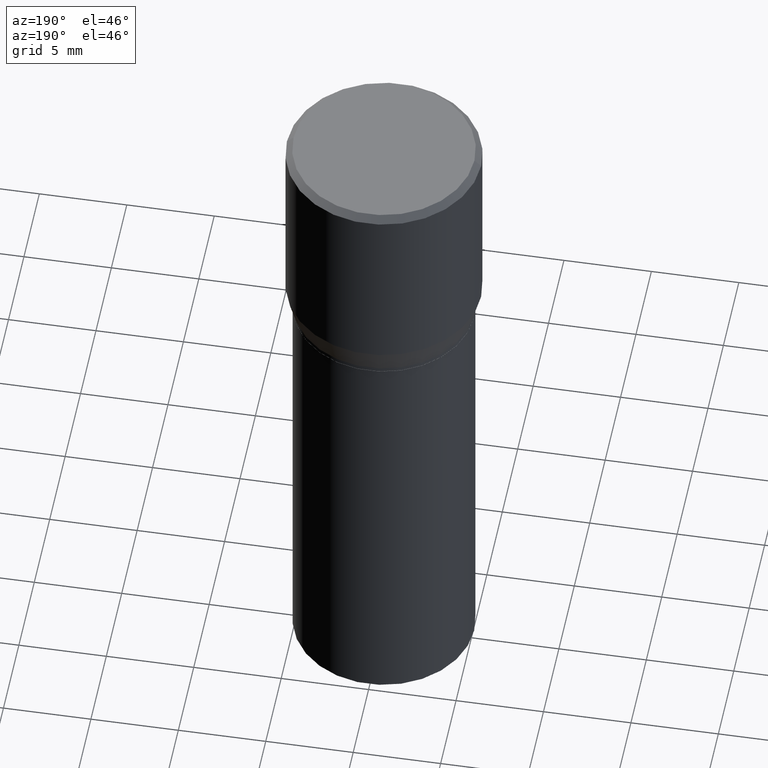
[diagram: clean part render]
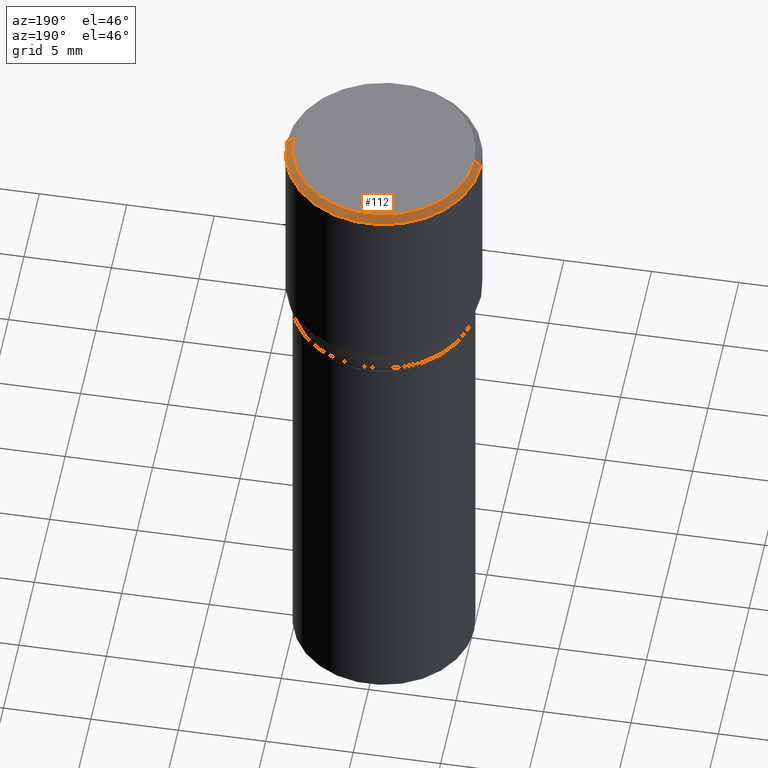
[diagram: same view with one face highlighted and labeled with its STEP entity id]
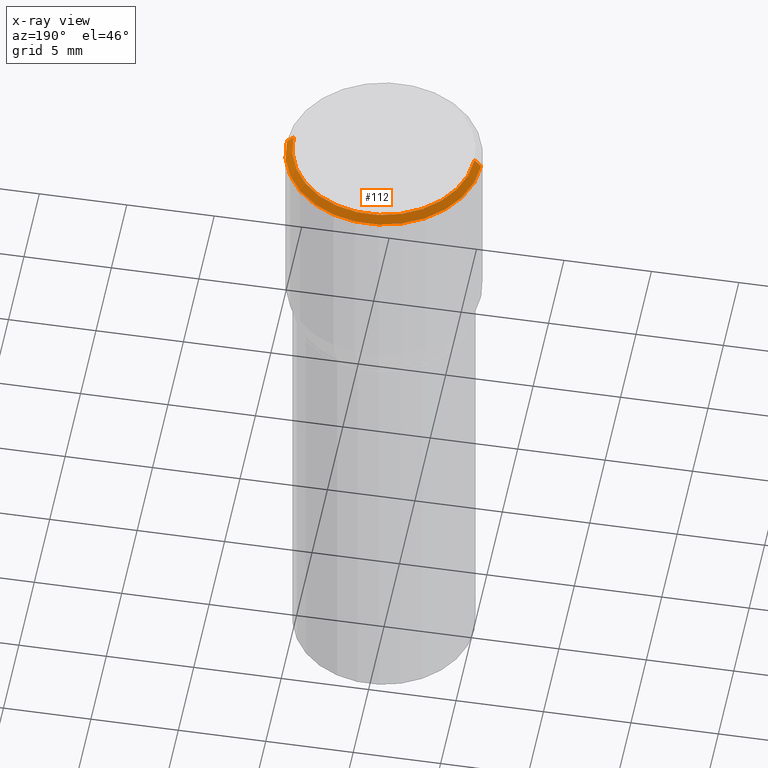
[diagram: x-ray of the same camera — body ghosted, the highlighted face saturated]
A machine part, auxiliary view. The second image highlights one B-rep face of the part: STEP entity #112.
The next image is the same camera in x-ray: the body ghosted, the highlighted face saturated — about 0% of this face is hidden behind the body in this view.
In plain terms, the highlighted conical surface has half-angle 45 deg.
Its self-contained STEP definition (entity closure, byte-faithful):
#2 = AXIS2_PLACEMENT_3D ( 'NONE', #225, #269, #127 ) ;
#9 = EDGE_CURVE ( 'NONE', #20, #426, #421, .T. ) ;
#20 = VERTEX_POINT ( 'NONE', #69 ) ;
#27 = ORIENTED_EDGE ( 'NONE', *, *, #403, .F. ) ;
#44 = CARTESIAN_POINT ( 'NONE',  ( -2.592568563193567003E-45, 3.701500806376036554E-31, 1.060151966214568974E-16 ) ) ;
#45 = EDGE_CURVE ( 'NONE', #431, #20, #103, .T. ) ;
#57 = CONICAL_SURFACE ( 'NONE', #313, 0.2187500000000000000, 0.7853981633974450594 ) ;
#69 = CARTESIAN_POINT ( 'NONE',  ( 0.2187500000000000000, -1.579895305826517922E-15, -0.01499999999999999944 ) ) ;
#103 = LINE ( 'NONE', #348, #248 ) ;
#112 = ADVANCED_FACE ( 'NONE', ( #437 ), #57, .T. ) ;
#121 = EDGE_CURVE ( 'NONE', #129, #426, #401, .T. ) ;
#126 = CARTESIAN_POINT ( 'NONE',  ( 3.668203209277705088E-31, -5.237222008264718399E-17, -0.01499999999999999944 ) ) ;
#127 = DIRECTION ( 'NONE',  ( 1.000000000000000000, -6.982962677686266711E-15, 0.000000000000000000 ) ) ;
#129 = VERTEX_POINT ( 'NONE', #337 ) ;
#139 = ORIENTED_EDGE ( 'NONE', *, *, #121, .F. ) ;
#163 = DIRECTION ( 'NONE',  ( -1.000000000000000000, 6.982962677686266711E-15, 0.000000000000000000 ) ) ;
#172 = DIRECTION ( 'NONE',  ( 0.7071067811865452413, -7.319954787623248157E-15, -0.7071067811865497932 ) ) ;
#182 = ORIENTED_EDGE ( 'NONE', *, *, #45, .T. ) ;
#190 = DIRECTION ( 'NONE',  ( 1.000000000000000000, -6.982962677686266711E-15, 4.875065411617369217E-29 ) ) ;
#225 = CARTESIAN_POINT ( 'NONE',  ( 3.668203209277705088E-31, -5.237222008264718399E-17, -0.01499999999999999944 ) ) ;
#247 = DIRECTION ( 'NONE',  ( -2.445468806185136597E-29, 3.491481338843145583E-15, 1.000000000000000000 ) ) ;
#248 = VECTOR ( 'NONE', #172, 39.37007874015748143 ) ;
#264 = CARTESIAN_POINT ( 'NONE',  ( -0.2187500000000000000, 1.475150865661223567E-15, -0.01499999999999999944 ) ) ;
#269 = DIRECTION ( 'NONE',  ( -2.445468806185136597E-29, 3.491481338843145583E-15, 1.000000000000000000 ) ) ;
#294 = VECTOR ( 'NONE', #411, 39.37007874015748143 ) ;
#299 = ORIENTED_EDGE ( 'NONE', *, *, #9, .T. ) ;
#313 = AXIS2_PLACEMENT_3D ( 'NONE', #126, #410, #163 ) ;
#315 = EDGE_LOOP ( 'NONE', ( #27, #182, #299, #139 ) ) ;
#329 = CARTESIAN_POINT ( 'NONE',  ( -0.2187500000000000000, 7.746759649129616577E-16, -0.01499999999999999944 ) ) ;
#335 = CARTESIAN_POINT ( 'NONE',  ( 0.2037499999999999867, -1.475466312070559275E-15, 1.060151966214670170E-16 ) ) ;
#337 = CARTESIAN_POINT ( 'NONE',  ( -0.2037499999999999867, 1.448964755619900421E-15, 1.060151966214468518E-16 ) ) ;
#348 = CARTESIAN_POINT ( 'NONE',  ( 0.2187500000000000000, -1.553106157095169608E-15, -0.01499999999999999944 ) ) ;
#401 = LINE ( 'NONE', #264, #294 ) ;
#403 = EDGE_CURVE ( 'NONE', #431, #129, #422, .T. ) ;
#410 = DIRECTION ( 'NONE',  ( 2.445468806185136597E-29, -3.491481338843145583E-15, -1.000000000000000000 ) ) ;
#411 = DIRECTION ( 'NONE',  ( -0.7071067811865452413, 2.468850131082233000E-15, -0.7071067811865497932 ) ) ;
#421 = CIRCLE ( 'NONE', #2, 0.2187500000000000000 ) ;
#422 = CIRCLE ( 'NONE', #460, 0.2037499999999999867 ) ;
#426 = VERTEX_POINT ( 'NONE', #329 ) ;
#431 = VERTEX_POINT ( 'NONE', #335 ) ;
#437 = FACE_OUTER_BOUND ( 'NONE', #315, .T. ) ;
#460 = AXIS2_PLACEMENT_3D ( 'NONE', #44, #247, #190 ) ;